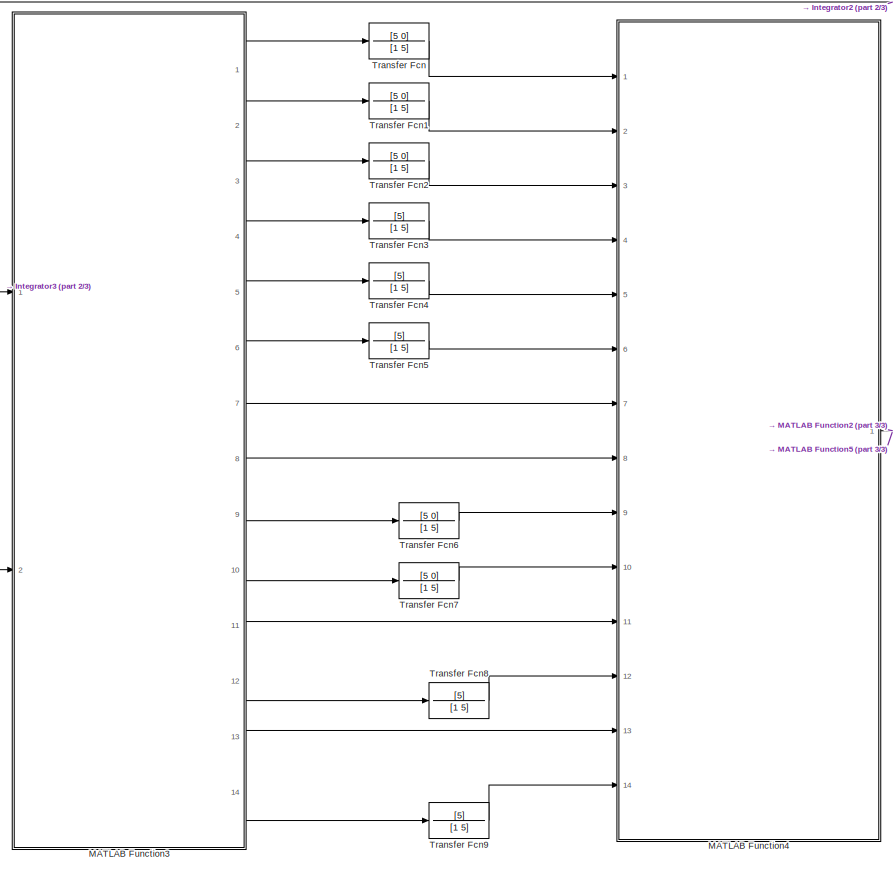
[diagram: root canvas - part 1/3, left side, full height]
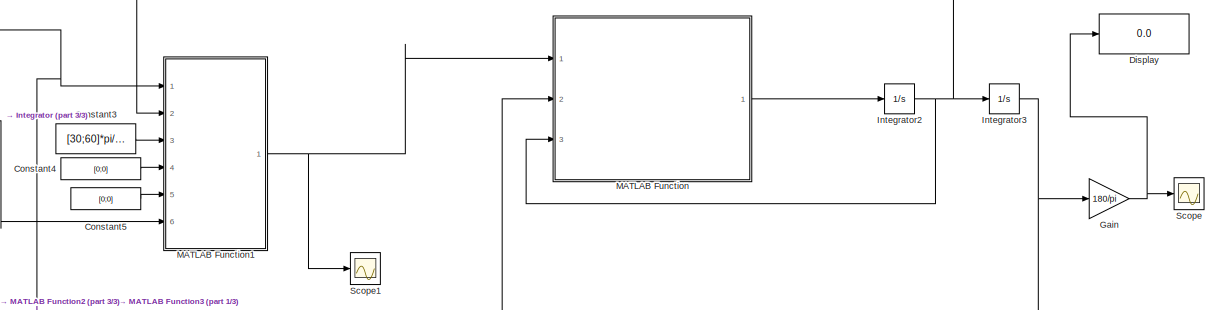
[diagram: root canvas - part 2/3, middle right region]
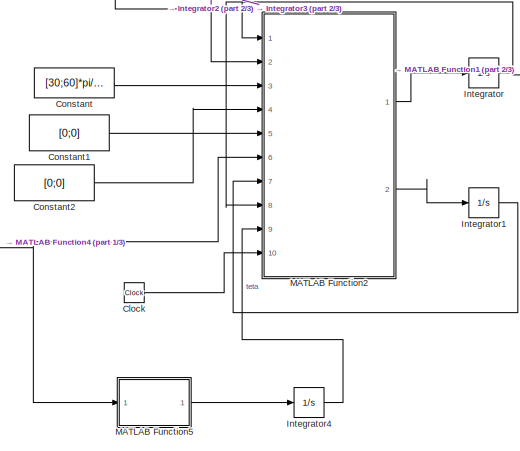
[diagram: root canvas - part 3/3, central region]
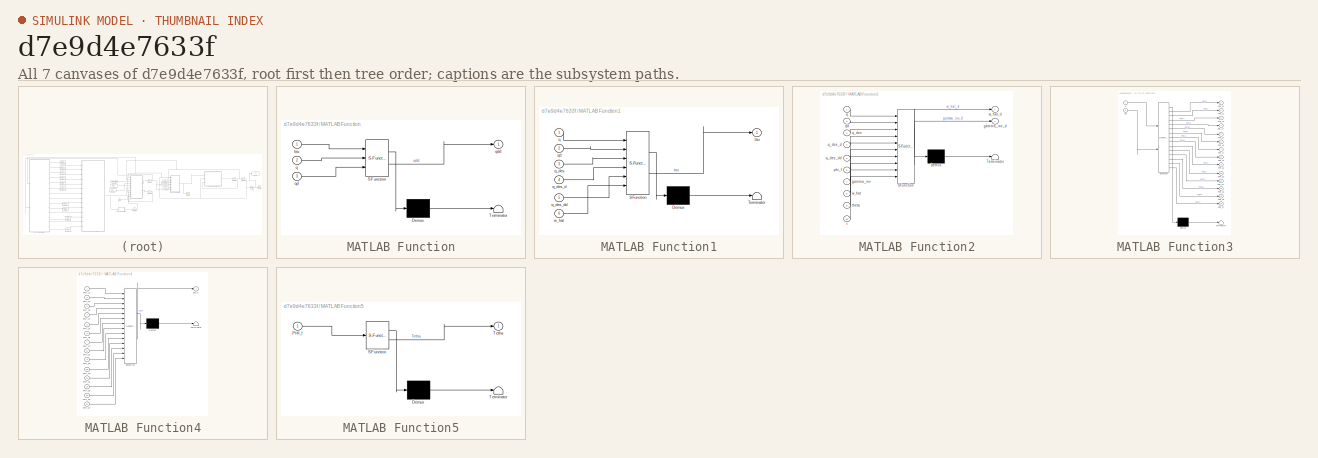
[diagram: thumbnail index - all 7 canvases of the model, root first then tree order]
MODEL slx_d7e9d4e7633f
KIND model
CONFIG AbsTol = auto
CONFIG EnableMultiTasking = off
CONFIG FixedStep = auto
CONFIG MaxStep = auto
CONFIG MinStep = auto
CONFIG RelTol = 1e-3
CONFIG SampleTimeConstraint = Unconstrained
CONFIG SolverName = VariableStepAuto
CONFIG StartTime = 0.0
CONFIG StopTime = 10.0
BLOCK [Clock] Clock
BLOCK [Constant] Constant
  Value = [30;60]*pi/180
BLOCK [Constant] Constant1
  Value = [0;0]
BLOCK [Constant] Constant2
  Value = [0;0]
BLOCK [Constant] Constant3
  Value = [30;60]*pi/180
BLOCK [Constant] Constant4
  Value = [0;0]
BLOCK [Constant] Constant5
  Value = [0;0]
BLOCK [Display] Display
  Decimation = 1
  Ports = [1]
BLOCK [Gain] Gain
  Gain = 180/pi
BLOCK [Integrator] Integrator
  InitialCondition = rand(7,1)
  Ports = [1, 1]
BLOCK [Integrator] Integrator1
  InitialCondition = 3*eye(7,7)
  Ports = [1, 1]
BLOCK [Integrator] Integrator2
  InitialCondition = zeros(2,1)
  Ports = [1, 1]
BLOCK [Integrator] Integrator3
  InitialCondition = zeros(2,1)
  Ports = [1, 1]
BLOCK [Integrator] Integrator4
  InitialCondition = zeros(7,7)
  Ports = [1, 1]
BLOCK [SubSystem] MATLAB Function
  ErrorFcn = Stateflow.Translate.translate
  PermitHierarchicalResolution = ExplicitOnly
  Ports = [3, 1]
  RequestExecContextInheritance = off
  SFBlockType = MATLAB Function
  TreatAsAtomicUnit = on
BLOCK [Demux] MATLAB Function/ Demux 
  Outputs = 1
  Ports = [1, 1]
BLOCK [S-Function] MATLAB Function/ SFunction 
  EnableBusSupport = on
  FunctionName = sf_sfun
  PortCounts = [3 2]
  Ports = [3, 2]
  SFcnIsStateOwnerBlock = off
  SFunctionDeploymentMode = off
  Tag = Stateflow S-Function 2
BLOCK [Terminator] MATLAB Function/ Terminator 
BLOCK [Inport] MATLAB Function/q
  Port = 2
BLOCK [Inport] MATLAB Function/qd
  Port = 3
BLOCK [Outport] MATLAB Function/qdd
BLOCK [Inport] MATLAB Function/tau
BLOCK [SubSystem] MATLAB Function1
  ErrorFcn = Stateflow.Translate.translate
  PermitHierarchicalResolution = ExplicitOnly
  Ports = [6, 1]
  RequestExecContextInheritance = off
  SFBlockType = MATLAB Function
  TreatAsAtomicUnit = on
BLOCK [Demux] MATLAB Function1/ Demux 
  Outputs = 1
  Ports = [1, 1]
BLOCK [S-Function] MATLAB Function1/ SFunction 
  EnableBusSupport = on
  FunctionName = sf_sfun
  PortCounts = [6 2]
  Ports = [6, 2]
  SFcnIsStateOwnerBlock = off
  SFunctionDeploymentMode = off
  Tag = Stateflow S-Function 1
BLOCK [Terminator] MATLAB Function1/ Terminator 
BLOCK [Inport] MATLAB Function1/q
BLOCK [Inport] MATLAB Function1/q_des
  Port = 3
BLOCK [Inport] MATLAB Function1/q_des_d
  Port = 4
BLOCK [Inport] MATLAB Function1/q_des_dd
  Port = 5
BLOCK [Inport] MATLAB Function1/qd
  Port = 2
BLOCK [Outport] MATLAB Function1/tau
BLOCK [Inport] MATLAB Function1/w_hat
  Port = 6
BLOCK [SubSystem] MATLAB Function2
  ErrorFcn = Stateflow.Translate.translate
  PermitHierarchicalResolution = ExplicitOnly
  Ports = [10, 2]
  RequestExecContextInheritance = off
  SFBlockType = MATLAB Function
  TreatAsAtomicUnit = on
BLOCK [Demux] MATLAB Function2/ Demux 
  Outputs = 1
  Ports = [1, 1]
BLOCK [S-Function] MATLAB Function2/ SFunction 
  EnableBusSupport = on
  FunctionName = sf_sfun
  PortCounts = [10 3]
  Ports = [10, 3]
  SFcnIsStateOwnerBlock = off
  SFunctionDeploymentMode = off
  Tag = Stateflow S-Function 3
BLOCK [Terminator] MATLAB Function2/ Terminator 
BLOCK [Inport] MATLAB Function2/gamma_inv
  Port = 7
BLOCK [Outport] MATLAB Function2/gamma_inv_d
  Port = 2
BLOCK [Inport] MATLAB Function2/phi_f
  Port = 6
BLOCK [Inport] MATLAB Function2/q
BLOCK [Inport] MATLAB Function2/q_des
  Port = 3
BLOCK [Inport] MATLAB Function2/q_des_d
  Port = 4
BLOCK [Inport] MATLAB Function2/q_des_dd
  Port = 5
BLOCK [Inport] MATLAB Function2/qd
  Port = 2
BLOCK [Inport] MATLAB Function2/t
  Port = 10
BLOCK [Inport] MATLAB Function2/theta
  Port = 9
BLOCK [Inport] MATLAB Function2/w_hat
  Port = 8
BLOCK [Outport] MATLAB Function2/w_hat_d
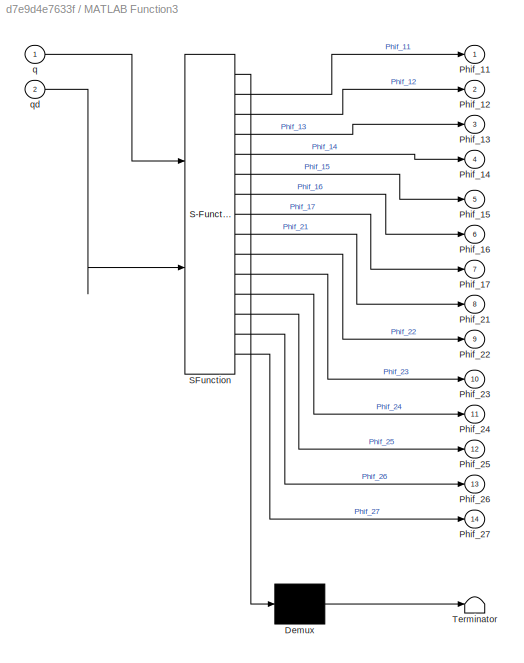
BLOCK [SubSystem] MATLAB Function3
  ErrorFcn = Stateflow.Translate.translate
  PermitHierarchicalResolution = ExplicitOnly
  Ports = [2, 14]
  RequestExecContextInheritance = off
  SFBlockType = MATLAB Function
  TreatAsAtomicUnit = on
BLOCK [Demux] MATLAB Function3/ Demux 
  Outputs = 1
  Ports = [1, 1]
BLOCK [S-Function] MATLAB Function3/ SFunction 
  EnableBusSupport = on
  FunctionName = sf_sfun
  PortCounts = [2 15]
  Ports = [2, 15]
  SFcnIsStateOwnerBlock = off
  SFunctionDeploymentMode = off
  Tag = Stateflow S-Function 4
BLOCK [Terminator] MATLAB Function3/ Terminator 
BLOCK [Outport] MATLAB Function3/Phif_11
BLOCK [Outport] MATLAB Function3/Phif_12
  Port = 2
BLOCK [Outport] MATLAB Function3/Phif_13
  Port = 3
BLOCK [Outport] MATLAB Function3/Phif_14
  Port = 4
BLOCK [Outport] MATLAB Function3/Phif_15
  Port = 5
BLOCK [Outport] MATLAB Function3/Phif_16
  Port = 6
BLOCK [Outport] MATLAB Function3/Phif_17
  Port = 7
BLOCK [Outport] MATLAB Function3/Phif_21
  Port = 8
BLOCK [Outport] MATLAB Function3/Phif_22
  Port = 9
BLOCK [Outport] MATLAB Function3/Phif_23
  Port = 10
BLOCK [Outport] MATLAB Function3/Phif_24
  Port = 11
BLOCK [Outport] MATLAB Function3/Phif_25
  Port = 12
BLOCK [Outport] MATLAB Function3/Phif_26
  Port = 13
BLOCK [Outport] MATLAB Function3/Phif_27
  Port = 14
BLOCK [Inport] MATLAB Function3/q
BLOCK [Inport] MATLAB Function3/qd
  Port = 2
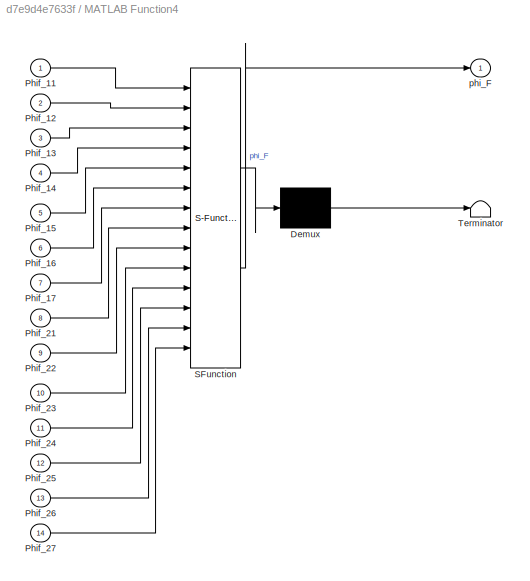
BLOCK [SubSystem] MATLAB Function4
  ErrorFcn = Stateflow.Translate.translate
  PermitHierarchicalResolution = ExplicitOnly
  Ports = [14, 1]
  RequestExecContextInheritance = off
  SFBlockType = MATLAB Function
  TreatAsAtomicUnit = on
BLOCK [Demux] MATLAB Function4/ Demux 
  Outputs = 1
  Ports = [1, 1]
BLOCK [S-Function] MATLAB Function4/ SFunction 
  EnableBusSupport = on
  FunctionName = sf_sfun
  PortCounts = [14 2]
  Ports = [14, 2]
  SFcnIsStateOwnerBlock = off
  SFunctionDeploymentMode = off
  Tag = Stateflow S-Function 5
BLOCK [Terminator] MATLAB Function4/ Terminator 
BLOCK [Inport] MATLAB Function4/Phif_11
BLOCK [Inport] MATLAB Function4/Phif_12
  Port = 2
BLOCK [Inport] MATLAB Function4/Phif_13
  Port = 3
BLOCK [Inport] MATLAB Function4/Phif_14
  Port = 4
BLOCK [Inport] MATLAB Function4/Phif_15
  Port = 5
BLOCK [Inport] MATLAB Function4/Phif_16
  Port = 6
BLOCK [Inport] MATLAB Function4/Phif_17
  Port = 7
BLOCK [Inport] MATLAB Function4/Phif_21
  Port = 8
BLOCK [Inport] MATLAB Function4/Phif_22
  Port = 9
BLOCK [Inport] MATLAB Function4/Phif_23
  Port = 10
BLOCK [Inport] MATLAB Function4/Phif_24
  Port = 11
BLOCK [Inport] MATLAB Function4/Phif_25
  Port = 12
BLOCK [Inport] MATLAB Function4/Phif_26
  Port = 13
BLOCK [Inport] MATLAB Function4/Phif_27
  Port = 14
BLOCK [Outport] MATLAB Function4/phi_F
BLOCK [SubSystem] MATLAB Function5
  ErrorFcn = Stateflow.Translate.translate
  PermitHierarchicalResolution = ExplicitOnly
  Ports = [1, 1]
  RequestExecContextInheritance = off
  SFBlockType = MATLAB Function
  TreatAsAtomicUnit = on
BLOCK [Demux] MATLAB Function5/ Demux 
  Outputs = 1
  Ports = [1, 1]
BLOCK [S-Function] MATLAB Function5/ SFunction 
  EnableBusSupport = on
  FunctionName = sf_sfun
  PortCounts = [1 2]
  Ports = [1, 2]
  SFcnIsStateOwnerBlock = off
  SFunctionDeploymentMode = off
  Tag = Stateflow S-Function 6
BLOCK [Terminator] MATLAB Function5/ Terminator 
BLOCK [Inport] MATLAB Function5/PHI_f
BLOCK [Outport] MATLAB Function5/Tetha
BLOCK [Scope] Scope
  Floating = off
  NumInputPorts = 1
  Ports = [1]
  ScopeSpecificationString = Simulink.scopes.TimeScopeBlockCfg('CurrentConfiguration', extmgr.ConfigurationSet(extmgr.Configuration('Core','General UI',true,'FigureColor',[1 1 1]),extmgr.Configuration('Core','Source UI',true),extmgr.Configuration('Sources','WiredSimulink',true),extmgr.Configuration('Visuals','Time Domain',true,'SerializedDisplays',{struct('MinYLimReal','-22.24418','MaxYLimReal','69.24721','YLabelReal','q(t)',...<+1659ch>
BLOCK [Scope] Scope1
  Floating = off
  NumInputPorts = 1
  Ports = [1]
  ScopeSpecificationString = Simulink.scopes.TimeScopeBlockCfg('CurrentConfiguration', extmgr.ConfigurationSet(extmgr.Configuration('Core','General UI',true,'FigureColor',[1 1 1]),extmgr.Configuration('Core','Source UI',true),extmgr.Configuration('Sources','WiredSimulink',true,'DataLoggingVariableName','ScopeData1'),extmgr.Configuration('Visuals','Time Domain',true,'SerializedDisplays',{struct('MinYLimReal','-62.34534','MaxYL...<+1699ch>
BLOCK [TransferFcn] Transfer Fcn
  Denominator = [1 5]
  Numerator = [5 0]
BLOCK [TransferFcn] Transfer Fcn1
  Denominator = [1 5]
  Numerator = [5 0]
BLOCK [TransferFcn] Transfer Fcn2
  Denominator = [1 5]
  Numerator = [5 0]
BLOCK [TransferFcn] Transfer Fcn3
  Denominator = [1 5]
  Numerator = [5]
BLOCK [TransferFcn] Transfer Fcn4
  Denominator = [1 5]
  Numerator = [5]
BLOCK [TransferFcn] Transfer Fcn5
  Denominator = [1 5]
  Numerator = [5]
BLOCK [TransferFcn] Transfer Fcn6
  Denominator = [1 5]
  Numerator = [5 0]
BLOCK [TransferFcn] Transfer Fcn7
  Denominator = [1 5]
  Numerator = [5 0]
BLOCK [TransferFcn] Transfer Fcn8
  Denominator = [1 5]
  Numerator = [5]
BLOCK [TransferFcn] Transfer Fcn9
  Denominator = [1 5]
  Numerator = [5]
LINE Clock:1 -> MATLAB Function2:10
LINE Constant1:1 -> MATLAB Function2:5
LINE Constant2:1 -> MATLAB Function2:4
LINE Constant3:1 -> MATLAB Function1:3
LINE Constant4:1 -> MATLAB Function1:4
LINE Constant5:1 -> MATLAB Function1:5
LINE Constant:1 -> MATLAB Function2:3
NET Gain:1 -> Display:1, Scope:1
LINE Integrator1:1 -> MATLAB Function2:7
NET Integrator2:1 -> Integrator3:1, MATLAB Function1:2, MATLAB Function2:2, MATLAB Function3:2, MATLAB Function:3
NET Integrator3:1 -> Gain:1, MATLAB Function1:1, MATLAB Function2:1, MATLAB Function3:1, MATLAB Function:2
LINE Integrator4:1 -> MATLAB Function2:9
NET Integrator:1 -> MATLAB Function1:6, MATLAB Function2:8
NET MATLAB Function1:1 -> MATLAB Function:1, Scope1:1
LINE MATLAB Function2:1 -> Integrator:1
LINE MATLAB Function2:2 -> Integrator1:1
LINE MATLAB Function3:1 -> Transfer Fcn:1
LINE MATLAB Function3:10 -> Transfer Fcn7:1
LINE MATLAB Function3:11 -> MATLAB Function4:11
LINE MATLAB Function3:12 -> Transfer Fcn8:1
LINE MATLAB Function3:13 -> MATLAB Function4:13
LINE MATLAB Function3:14 -> Transfer Fcn9:1
LINE MATLAB Function3:2 -> Transfer Fcn1:1
LINE MATLAB Function3:3 -> Transfer Fcn2:1
LINE MATLAB Function3:4 -> Transfer Fcn3:1
LINE MATLAB Function3:5 -> Transfer Fcn4:1
LINE MATLAB Function3:6 -> Transfer Fcn5:1
LINE MATLAB Function3:7 -> MATLAB Function4:7
LINE MATLAB Function3:8 -> MATLAB Function4:8
LINE MATLAB Function3:9 -> Transfer Fcn6:1
NET MATLAB Function4:1 -> MATLAB Function2:6, MATLAB Function5:1
LINE MATLAB Function5:1 -> Integrator4:1
LINE MATLAB Function:1 -> Integrator2:1
LINE Transfer Fcn1:1 -> MATLAB Function4:2
LINE Transfer Fcn2:1 -> MATLAB Function4:3
LINE Transfer Fcn3:1 -> MATLAB Function4:4
LINE Transfer Fcn4:1 -> MATLAB Function4:5
LINE Transfer Fcn5:1 -> MATLAB Function4:6
LINE Transfer Fcn6:1 -> MATLAB Function4:9
LINE Transfer Fcn7:1 -> MATLAB Function4:10
LINE Transfer Fcn8:1 -> MATLAB Function4:12
LINE Transfer Fcn9:1 -> MATLAB Function4:14
LINE Transfer Fcn:1 -> MATLAB Function4:1
note: NET lines group one-source signal fan-out (src -> all destinations, sorted); 1:1 wires keep LINE
CHART MATLAB Function5 states=1 transitions=1
  STATE_LABEL 'eML_blk_kernel()'
  STATE_LABEL "SCRIPT:\nfunction Tetha = fcn(PHI_f)\n\n\nTetha=PHI_f*(PHI_f)'\n"
CHART MATLAB Function1 states=1 transitions=1
  STATE_LABEL 'eML_blk_kernel()'
  STATE_LABEL 'SCRIPT:\nfunction tau = fcn(q,qd,q_des,q_des_d,q_des_dd,w_hat)\ng=9.81;\nalph=5;\nlambda=16*eye(2);\nkc=10*eye(2);\ne=q_des-q;\ned=q_des_d-qd;\nef=ed+lambda*e;\nv=q_des_d+lambda*e;\nvd=q_des_dd+lambda*ed;\nphi=[vd(1) vd(2) (2*vd(1)+vd(2))*cos(q(2))-(qd(2)*v(1)+(qd(1)+qd(2))*v(2))*sin(q(2)) g*cos(q(1)) g*cos(q(1)+q(2)) qd(1) 0;\n    0 vd(1)+vd(2) vd(1)*cos(q(2))+qd(1)*v(1)*sin(q(2)) 0 g*cos(q(1)+q(2)) 0 qd(2)]...<+28ch>'
CHART MATLAB Function states=1 transitions=1
  STATE_LABEL 'eML_blk_kernel()'
  STATE_LABEL 'SCRIPT:\nfunction qdd = fcn(tau,q,qd)\n\nq1=q(1);\nq2=q(2);\n\nq1d=qd(1);\nq2d=qd(2);\n\n\n\n\nm1=2;\nm2=1.4;\n\nI1=.5;\nI2=.1;\n\nl1=.8;\nl2=.8;\n\nlc1=.4;\nlc2=.4;\n\n\ng=9.81;\n\nkv1=.8;\nkv2=1.6;\nD=[kv1 0;0 kv2];\n\n\n\n\nd11=m1*lc1^2+I1+I2+m2*(l1^2+lc2^2+2*l1*lc2*cos(q2));\nd12=m2*lc2^2+I2+m2*l2*lc2*cos(q2);\nd21=m2*lc2^2+I2+m2*l2*lc2*cos(q2);\nd22=m2*lc2^2+I2;\n\nc11=-m2*l1*lc2*sin(q2)*q2d;\nc12=-m2*l1*lc2*sin(q2)*(q1d+q2d);\nc21=...<+197ch>'
CHART MATLAB Function2 states=1 transitions=1
  STATE_LABEL 'eML_blk_kernel()'
  STATE_LABEL "SCRIPT:\nfunction [w_hat_d,gamma_inv_d] = fcn(q,qd,q_des,q_des_d,q_des_dd,phi_f,gamma_inv,w_hat,theta,t)\n\nm1=2;\nm2=1.4;\n\nI1=.5;\nI2=.1;\n\nl1=.8;\nl2=.8;\n\nlc1=.4;\nlc2=.4;\n\n\ng=9.81;\n\nkv1=.8;\nkv2=1.6;\nw1=I1+m1*lc1^2+m2*l1^2+m2*lc2^2;\nw2=m2*lc2^2+I2;\nw3=m2*l1*lc2;\nw4=m1*lc1+m2*l1;\nw5=m2*lc2;\nw6=kv1;\nw7=kv2;\nw=[w1,w2,w3,w4,w5,w6,w7]';\nlanda_0=1\nk_0=3\nkappa=1;\ng=9.81;\nalph=5;\nlambda=16*eye(2);\nkc=10*eye(2);...<+613ch>"
CHART MATLAB Function3 states=1 transitions=1
  STATE_LABEL 'eML_blk_kernel()'
  STATE_LABEL 'SCRIPT:\nfunction  [Phif_11,Phif_12,Phif_13,Phif_14,Phif_15,Phif_16,Phif_17,Phif_21,Phif_22,Phif_23,Phif_24,Phif_25,Phif_26,Phif_27]= fcn(q,qd)\ng=9.81\nPhif_11=qd(1);\nPhif_12=qd(2);\nPhif_13=(2*qd(1)+qd(2))*cos(q(2));\nPhif_14=g*cos(q(1));\nPhif_15=g*cos(q(1)+q(2));\nPhif_16=qd(1);\nPhif_17=0;\nPhif_21=0;\nPhif_22=qd(1)+qd(2);\nPhif_23=qd(1)*cos(q(2))+qd(1)*sin(q(2))*(qd(1)+qd(2));\nPhif_24=0;\nPhif_25=g*cos(...<+41ch>'
CHART MATLAB Function4 states=1 transitions=1
  STATE_LABEL 'eML_blk_kernel()'
  STATE_LABEL "SCRIPT:\nfunction phi_F = fcn(Phif_11,Phif_12,Phif_13,Phif_14,Phif_15,Phif_16,Phif_17,Phif_21,Phif_22,Phif_23,Phif_24,Phif_25,Phif_26,Phif_27)\nphi_F=[Phif_11,Phif_12,Phif_13,Phif_14,Phif_15,Phif_16,Phif_17;Phif_21,Phif_22,Phif_23,Phif_24,Phif_25,Phif_26,Phif_27]';\n\n"
CHART  states=0 transitions=0
CHART  states=0 transitions=0
CHART  states=0 transitions=0
CHART  states=0 transitions=0
CHART  states=0 transitions=0
CHART  states=0 transitions=0
